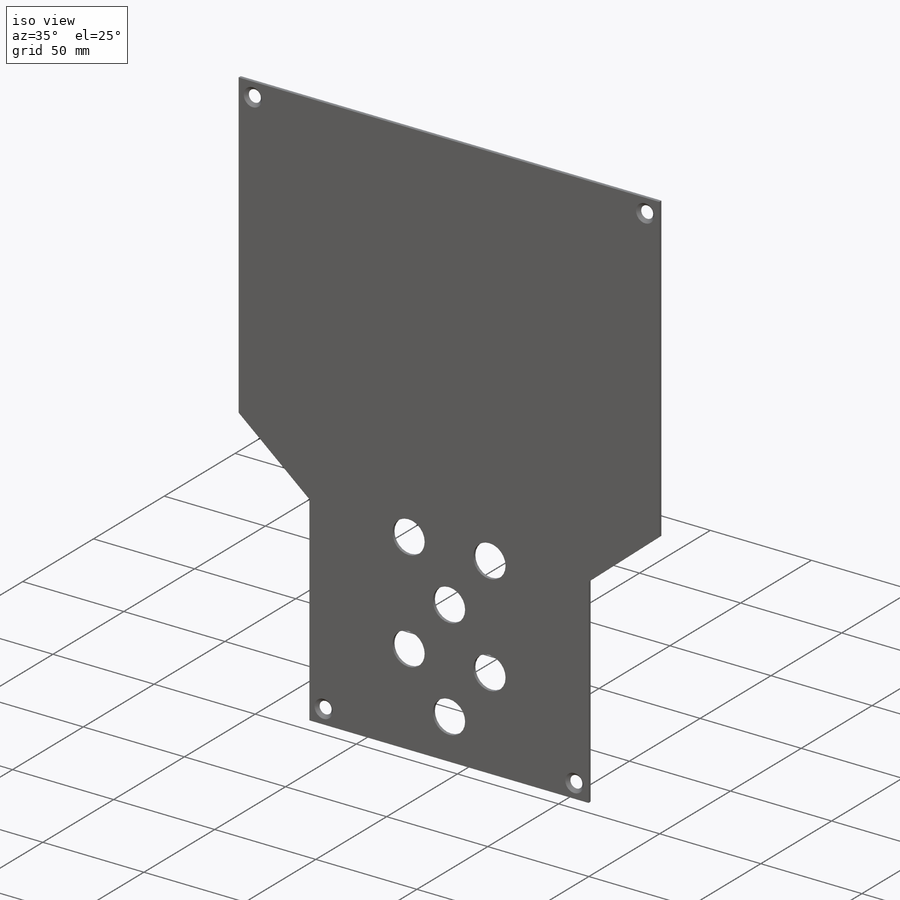
[diagram: iso view]
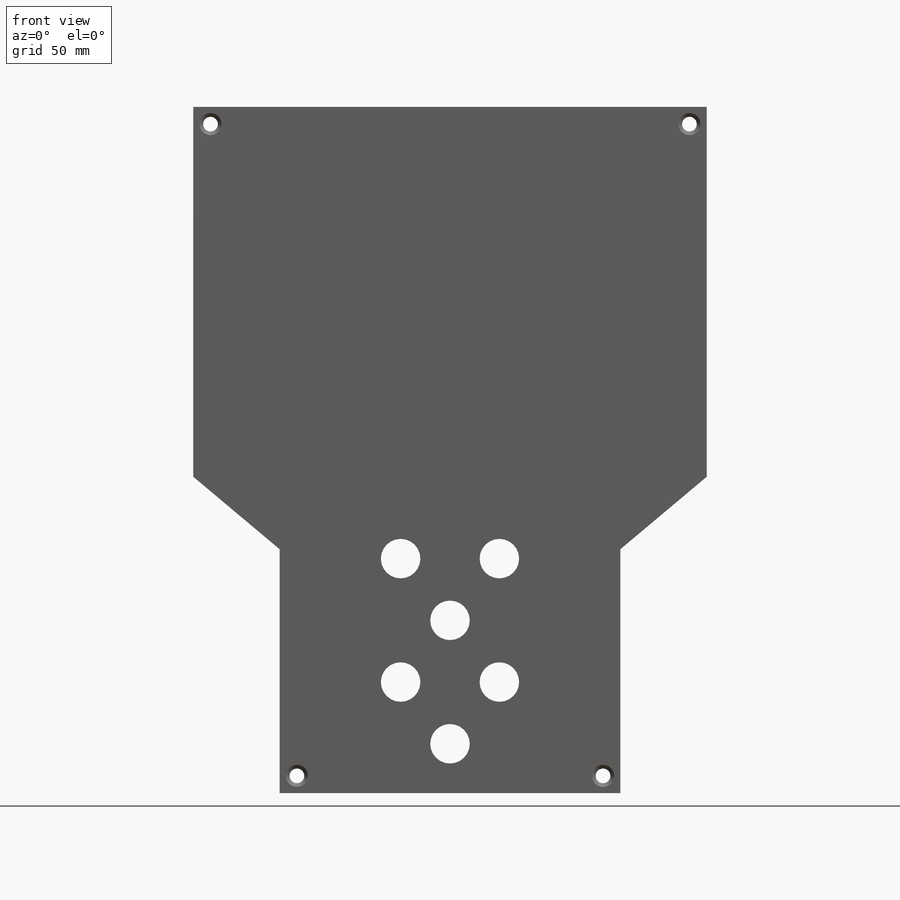
[diagram: front view]
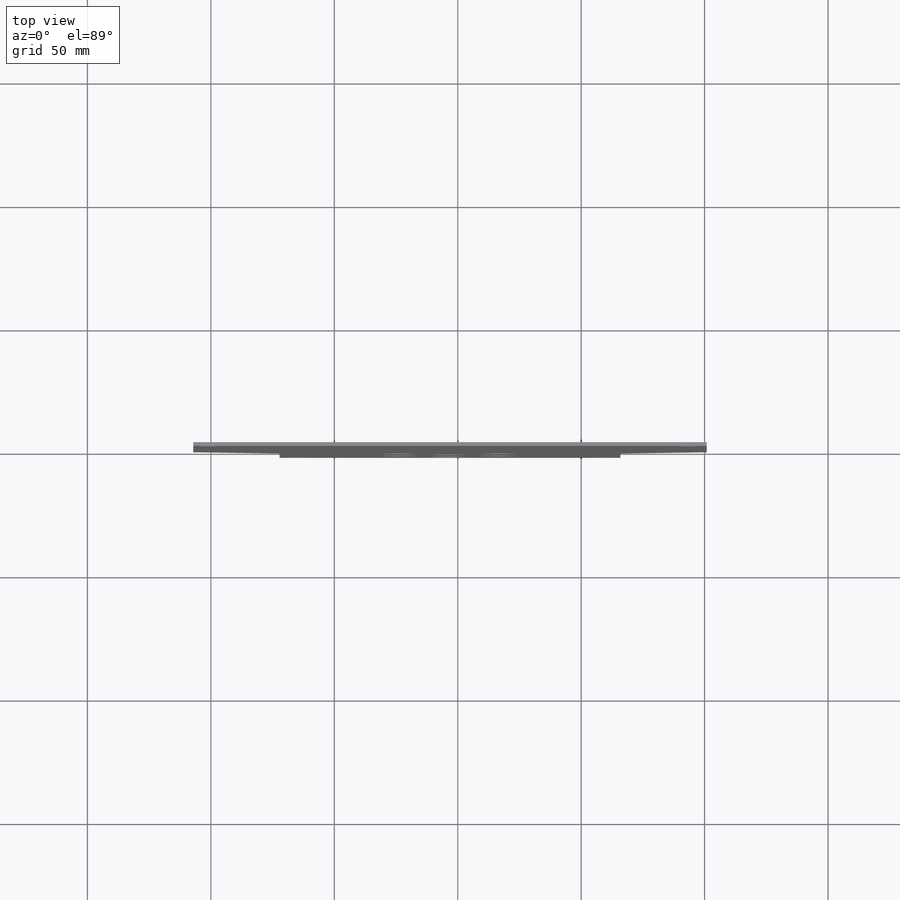
[diagram: top view]
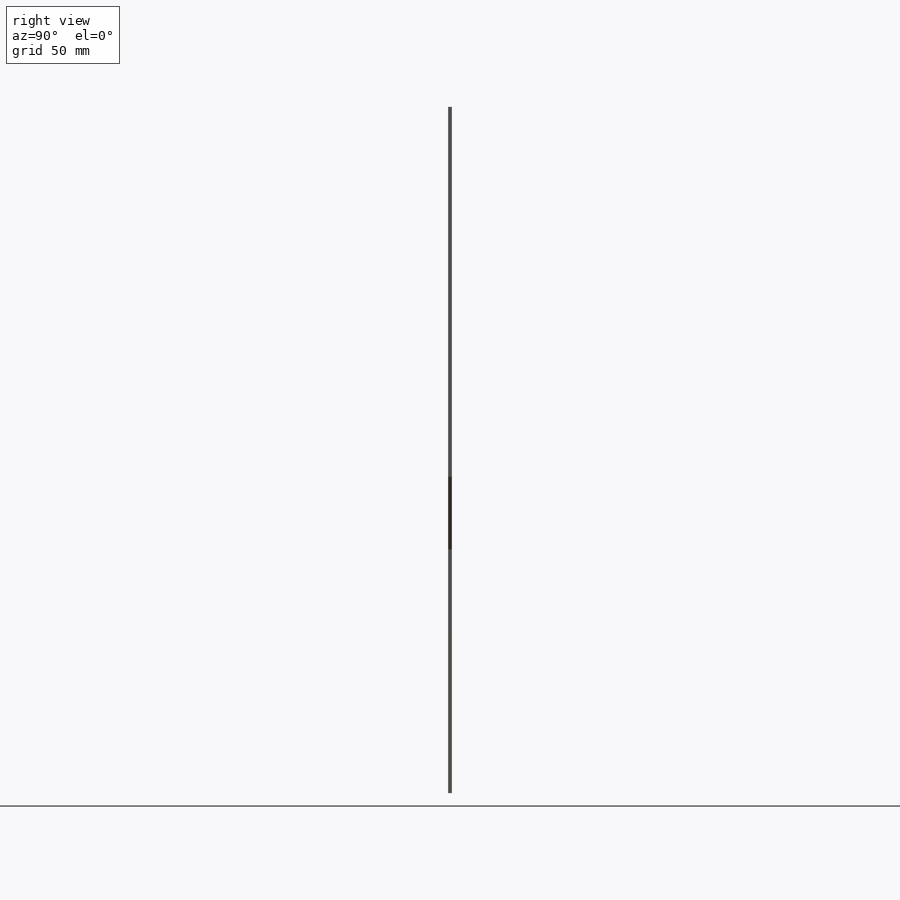
[diagram: right view]
SOLIDWORKS PART (.sldprt)
format: sldprt  version: not decoded by parser v0  size: 208,384 bytes
history: native  units: mm
features: sketch x5, plane x3, material x1, extrude x1, cut_extrude x1, hole x1 (+9 scaffold rows collapsed)
feature tree (21):
  scaffold x9  (default folders/planes/origin — collapsed)
  material  "Material <não especificado>"
  plane  "Plano frontal"
  plane  "Plano superior"
  plane  "Plano direito"
  sketch  "Esboço1"  dims[D1=9.0mm D2=9.0mm D3=9.0mm D4=9.0mm D5=9.0mm]
  extrude  "Ressalto-extrusão1"  Depth=1.5mm
  sketch  "Esboço2"  dims[c1.D1=16.0mm c1.D2=16.0mm c1.D3=16.0mm c1.D4=16.0mm c1.D5=16.0mm c1.D6=16.0mm c2.D3=16.0mm c2.D4=16.0mm c2.D6=16.0mm c2.D7=16.0mm c2.D1=69.0mm c2.D2=20.0mm c3.D3=25.0mm c3.D4=30.0mm c3.D5=25.0mm c3.D6=~126.516793mm c4.D3=20.0mm c4.D4=25.0mm c4.D6=20.0mm c4.D7=25.0mm]
  cut_extrude  "Corte-extrusão1"  [1 undecoded]
  sketch  "Esboço3"  dims[c1.D1=~3.709562mm c1.D2=4.0mm c1.D3=4.0mm c1.D4=4.0mm c2.D1=7.0mm c2.D2=7.0mm c2.D3=7.0mm c2.D4=7.0mm]
  hole  "Escareado para parafuso Allen sextavado escareado de M41"  Diameter=4.5mm Depth=1.5mm
  sketch  "3DSketch1"
  sketch  "Esboço4"  dims[hole-wizard template sketch: 55 standard entries collapsed; hole parameters kept: c17.Thru Hole Depth=1.5mm c17.Near C'Sink Dia.=8.96mm c17.D4=~3.666174mm c17.Near C'Sink Angle=90.0deg]
decode coverage: 6 of 8 modeling features carry decoded parameters
note: ~ marks probable driven/reference dimensions
note: 1 parameter value undecoded
note: suppression state not decoded; provenance and decode notes live in map.json
